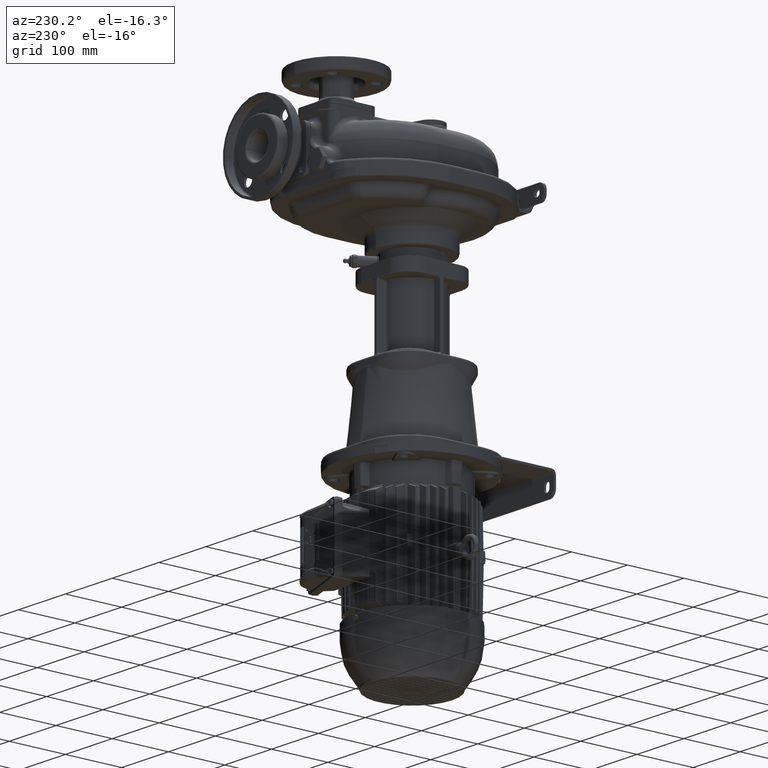
[diagram: clean part render]
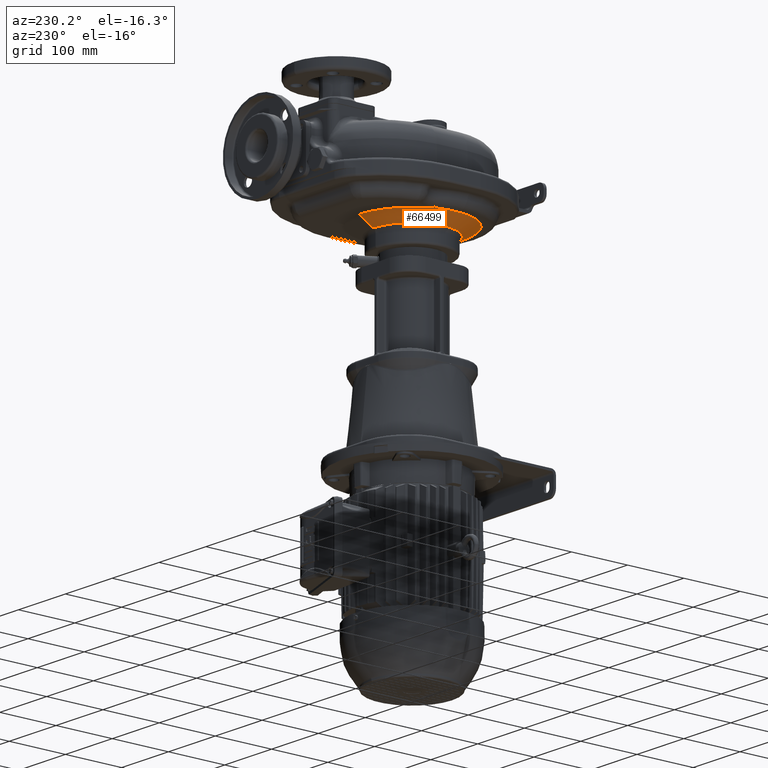
[diagram: same view with one face highlighted and labeled with its STEP entity id]
A machine part, auxiliary view. The second image highlights one B-rep face of the part: STEP entity #66499.
In plain terms, the highlighted conical surface has half-angle 60 deg.
Its self-contained STEP definition (entity closure, byte-faithful):
#9633=CARTESIAN_POINT('',(0.E0,0.E0,-3.907179676972E1));
#9634=DIRECTION('',(0.E0,0.E0,-1.E0));
#9635=DIRECTION('',(0.E0,-1.E0,0.E0));
#9636=AXIS2_PLACEMENT_3D('',#9633,#9634,#9635);
#9638=DIRECTION('',(0.E0,-8.660254037844E-1,5.E-1));
#9639=VECTOR('',#9638,2.923760430703E1);
#9640=CARTESIAN_POINT('',(0.E0,-6.9E1,-5.369059892324E1));
#9641=LINE('',#9640,#9639);
#9642=CARTESIAN_POINT('',(0.E0,0.E0,-5.369059892324E1));
#9643=DIRECTION('',(0.E0,0.E0,-1.E0));
#9644=DIRECTION('',(0.E0,-1.E0,0.E0));
#9645=AXIS2_PLACEMENT_3D('',#9642,#9643,#9644);
#9647=DIRECTION('',(0.E0,8.660254037844E-1,5.E-1));
#9648=VECTOR('',#9647,2.923760430703E1);
#9649=CARTESIAN_POINT('',(1.532108161659E-14,6.9E1,-5.369059892324E1));
#9650=LINE('',#9649,#9648);
#9651=CARTESIAN_POINT('',(0.E0,0.E0,-3.907179676972E1));
#9652=DIRECTION('',(0.E0,0.E0,-1.E0));
#9653=DIRECTION('',(-8.622478345761E-1,5.064865958433E-1,0.E0));
#9654=AXIS2_PLACEMENT_3D('',#9651,#9652,#9653);
#9656=CARTESIAN_POINT('',(-8.905473399093E1,3.409199745411E1,
-3.847321898222E1));
#9657=CARTESIAN_POINT('',(-8.897661091580E1,3.432277947868E1,
-3.846770571881E1));
#9658=CARTESIAN_POINT('',(-8.881493748900E1,3.477856095586E1,
-3.845971490832E1));
#9659=CARTESIAN_POINT('',(-8.855932206661E1,3.543769971762E1,
-3.845684839569E1));
#9660=CARTESIAN_POINT('',(-8.828318829121E1,3.609292412956E1,
-3.846281115210E1));
#9661=CARTESIAN_POINT('',(-8.797899571194E1,3.676021104069E1,
-3.847800499323E1));
#9662=CARTESIAN_POINT('',(-8.763595242511E1,3.745930876625E1,
-3.850340323206E1));
#9663=CARTESIAN_POINT('',(-8.723582010843E1,3.822046370257E1,
-3.854106227839E1));
#9664=CARTESIAN_POINT('',(-8.675234095821E1,3.908232543419E1,
-3.859438387958E1));
#9665=CARTESIAN_POINT('',(-8.617541253520E1,4.005295797430E1,
-3.866441381016E1));
#9666=CARTESIAN_POINT('',(-8.550163992659E1,4.113638828256E1,
-3.874896837352E1));
#9667=CARTESIAN_POINT('',(-8.473474426281E1,4.233458401168E1,
-3.884260325756E1));
#9668=CARTESIAN_POINT('',(-8.386481639959E1,4.368061334044E1,
-3.893680046677E1));
#9669=CARTESIAN_POINT('',(-8.311202888510E1,4.485680332709E1,
-3.900195925596E1));
#9670=CARTESIAN_POINT('',(-8.245712336523E1,4.590002147644E1,
-3.904373348719E1));
#9671=CARTESIAN_POINT('',(-8.186608190043E1,4.686443786889E1,
-3.906698453675E1));
#9672=CARTESIAN_POINT('',(-8.150163235745E1,4.747589048070E1,
-3.907179671278E1));
#9673=CARTESIAN_POINT('',(-8.132765384438E1,4.777207305346E1,
-3.907179676972E1));
#9675=CARTESIAN_POINT('',(-9.442542130497E1,-4.317303522948E0,
-3.895427179862E1));
#9676=CARTESIAN_POINT('',(-9.446646756274E1,-3.576320792858E0,
-3.895013813610E1));
#9677=CARTESIAN_POINT('',(-9.453183256778E1,-2.091722208694E0,
-3.894149635583E1));
#9678=CARTESIAN_POINT('',(-9.457945058349E1,1.418716062178E-1,
-3.892732426017E1));
#9679=CARTESIAN_POINT('',(-9.457642914278E1,2.381421716959E0,
-3.891184695698E1));
#9680=CARTESIAN_POINT('',(-9.452255793573E1,4.626171273487E0,
-3.889496116254E1));
#9681=CARTESIAN_POINT('',(-9.441762629868E1,6.875457452389E0,
-3.887655400441E1));
#9682=CARTESIAN_POINT('',(-9.426141895212E1,9.128628123021E0,
-3.885650257968E1));
#9683=CARTESIAN_POINT('',(-9.405370966778E1,1.138511523604E1,
-3.883467177068E1));
#9684=CARTESIAN_POINT('',(-9.379425524784E1,1.364441602678E1,
-3.881091258242E1));
#9685=CARTESIAN_POINT('',(-9.348278627583E1,1.590612303349E1,
-3.878505956828E1));
#9686=CARTESIAN_POINT('',(-9.311899583007E1,1.816994050645E1,
-3.875692779530E1));
#9687=CARTESIAN_POINT('',(-9.270252639152E1,2.043570591279E1,
-3.872630904694E1));
#9688=CARTESIAN_POINT('',(-9.223294507707E1,2.270344826061E1,
-3.869296640131E1));
#9689=CARTESIAN_POINT('',(-9.170973800059E1,2.497334883851E1,
-3.865662909134E1));
#9690=CARTESIAN_POINT('',(-9.113222985638E1,2.724599844522E1,
-3.861698051606E1));
#9691=CARTESIAN_POINT('',(-9.049962129952E1,2.952212756695E1,
-3.857365241162E1));
#9692=CARTESIAN_POINT('',(-8.981083416695E1,3.180313136776E1,
-3.852620230810E1));
#9693=CARTESIAN_POINT('',(-8.931318810288E1,3.332850260348E1,
-3.849145846430E1));
#9694=CARTESIAN_POINT('',(-8.905473399093E1,3.409199745411E1,
-3.847321898222E1));
#9696=CARTESIAN_POINT('',(-8.425941142379E1,-4.238761411277E1,
-3.907179676972E1));
#9697=CARTESIAN_POINT('',(-8.457274834127E1,-4.176475318284E1,
-3.907179678162E1));
#9698=CARTESIAN_POINT('',(-8.518595959895E1,-4.051226894692E1,
-3.907156761846E1));
#9699=CARTESIAN_POINT('',(-8.606498647443E1,-3.861407531140E1,
-3.907053606116E1));
#9700=CARTESIAN_POINT('',(-8.690277765944E1,-3.669737414935E1,
-3.906881775254E1));
#9701=CARTESIAN_POINT('',(-8.769891528316E1,-3.476313027571E1,
-3.906641497795E1));
#9702=CARTESIAN_POINT('',(-8.845301679531E1,-3.281228612836E1,
-3.906333152308E1));
#9703=CARTESIAN_POINT('',(-8.916471247851E1,-3.084581693081E1,
-3.905957250497E1));
#9704=CARTESIAN_POINT('',(-8.983365761737E1,-2.886470226824E1,
-3.905514454774E1));
#9705=CARTESIAN_POINT('',(-9.045953041485E1,-2.686993071963E1,
-3.905005572707E1));
#9706=CARTESIAN_POINT('',(-9.104203137508E1,-2.486250266509E1,
-3.904431565359E1));
#9707=CARTESIAN_POINT('',(-9.158088502602E1,-2.284342540372E1,
-3.903793547402E1));
#9708=CARTESIAN_POINT('',(-9.207583922972E1,-2.081371594984E1,
-3.903092791373E1));
#9709=CARTESIAN_POINT('',(-9.252666623625E1,-1.877439769385E1,
-3.902330729422E1));
#9710=CARTESIAN_POINT('',(-9.293316227117E1,-1.672650293686E1,
-3.901508955814E1));
#9711=CARTESIAN_POINT('',(-9.329514871910E1,-1.467106780396E1,
-3.900629229513E1));
#9712=CARTESIAN_POINT('',(-9.361247141410E1,-1.260913673502E1,
-3.899693472105E1));
#9713=CARTESIAN_POINT('',(-9.388500130788E1,-1.054176010028E1,
-3.898703780806E1));
#9714=CARTESIAN_POINT('',(-9.411263613947E1,-8.469982335450E0,
-3.897662400111E1));
#9715=CARTESIAN_POINT('',(-9.429529597258E1,-6.394875121212E0,
-3.896571776128E1));
#9716=CARTESIAN_POINT('',(-9.438705113345E1,-5.009974875953E0,
-3.895813597290E1));
#9717=CARTESIAN_POINT('',(-9.442542130497E1,-4.317303522948E0,
-3.895427179862E1));
#48242=CARTESIAN_POINT('',(0.E0,-6.9E1,-5.369059892324E1));
#48244=VERTEX_POINT('',#48242);
#48246=CARTESIAN_POINT('',(2.219209644230E-14,6.9E1,-5.369059892324E1));
#48248=VERTEX_POINT('',#48246);
#48249=CARTESIAN_POINT('',(1.155093470765E-14,9.432050807569E1,
-3.907179676972E1));
#48250=CARTESIAN_POINT('',(0.E0,-9.432050807569E1,-3.907179676972E1));
#48251=VERTEX_POINT('',#48249);
#48252=VERTEX_POINT('',#48250);
#48253=CARTESIAN_POINT('',(-8.425941142377E1,-4.238761411280E1,
-3.907179676972E1));
#48254=VERTEX_POINT('',#48253);
#48255=CARTESIAN_POINT('',(-8.132765384438E1,4.777207305346E1,
-3.907179676972E1));
#48256=VERTEX_POINT('',#48255);
#48335=VERTEX_POINT('',#9717);
#48336=VERTEX_POINT('',#9694);
#66483=CARTESIAN_POINT('',(0.E0,0.E0,-4.607437027912E1));
#66484=DIRECTION('',(0.E0,0.E0,1.E0));
#66485=DIRECTION('',(0.E0,-1.E0,0.E0));
#66486=AXIS2_PLACEMENT_3D('',#66483,#66484,#66485);
#66487=CONICAL_SURFACE('',#66486,8.219169497367E1,6.E1);
#66488=ORIENTED_EDGE('',*,*,#66211,.F.);
#66489=ORIENTED_EDGE('',*,*,#66194,.F.);
#66490=ORIENTED_EDGE('',*,*,#66166,.T.);
#66491=ORIENTED_EDGE('',*,*,#66191,.T.);
#66492=ORIENTED_EDGE('',*,*,#66208,.F.);
#66494=ORIENTED_EDGE('',*,*,#66493,.F.);
#66495=ORIENTED_EDGE('',*,*,#66375,.F.);
#66496=ORIENTED_EDGE('',*,*,#66477,.F.);
#66497=EDGE_LOOP('',(#66488,#66489,#66490,#66491,#66492,#66494,#66495,#66496));
#66498=FACE_OUTER_BOUND('',#66497,.F.);
#66499=ADVANCED_FACE('',(#66498),#66487,.T.);
#9637=CIRCLE('',#9636,9.432050807569E1);
#9646=CIRCLE('',#9645,6.9E1);
#9655=CIRCLE('',#9654,9.432050807569E1);
#9674=B_SPLINE_CURVE_WITH_KNOTS('',3,(#9656,#9657,#9658,#9659,#9660,#9661,#9662,
#9663,#9664,#9665,#9666,#9667,#9668,#9669,#9670,#9671,#9672,#9673),
.UNSPECIFIED.,.F.,.F.,(4,1,1,1,1,1,1,1,1,1,1,1,1,1,1,4),(0.E0,6.666666666667E-2,
1.333333333333E-1,2.E-1,2.666666666667E-1,3.333333333333E-1,4.E-1,
4.666666666667E-1,5.333333333333E-1,6.E-1,6.666666666667E-1,7.333333333333E-1,
8.E-1,8.666666666667E-1,9.333333333333E-1,1.E0),.UNSPECIFIED.);
#9695=B_SPLINE_CURVE_WITH_KNOTS('',3,(#9675,#9676,#9677,#9678,#9679,#9680,#9681,
#9682,#9683,#9684,#9685,#9686,#9687,#9688,#9689,#9690,#9691,#9692,#9693,#9694),
.UNSPECIFIED.,.F.,.F.,(4,1,1,1,1,1,1,1,1,1,1,1,1,1,1,1,1,4),(0.E0,
5.882352941176E-2,1.176470588235E-1,1.764705882353E-1,2.352941176471E-1,
2.941176470588E-1,3.529411764706E-1,4.117647058824E-1,4.705882352941E-1,
5.294117647059E-1,5.882352941176E-1,6.470588235294E-1,7.058823529412E-1,
7.647058823529E-1,8.235294117647E-1,8.823529411765E-1,9.411764705882E-1,1.E0),
.UNSPECIFIED.);
#9718=B_SPLINE_CURVE_WITH_KNOTS('',3,(#9696,#9697,#9698,#9699,#9700,#9701,#9702,
#9703,#9704,#9705,#9706,#9707,#9708,#9709,#9710,#9711,#9712,#9713,#9714,#9715,
#9716,#9717),.UNSPECIFIED.,.F.,.F.,(4,1,1,1,1,1,1,1,1,1,1,1,1,1,1,1,1,1,1,4),(
0.E0,5.263157894737E-2,1.052631578947E-1,1.578947368421E-1,2.105263157895E-1,
2.631578947368E-1,3.157894736842E-1,3.684210526316E-1,4.210526315789E-1,
4.736842105263E-1,5.263157894737E-1,5.789473684211E-1,6.315789473684E-1,
6.842105263158E-1,7.368421052632E-1,7.894736842105E-1,8.421052631579E-1,
8.947368421053E-1,9.473684210526E-1,1.E0),.UNSPECIFIED.);
#66166=EDGE_CURVE('',#48244,#48248,#9646,.T.);
#66191=EDGE_CURVE('',#48248,#48251,#9650,.T.);
#66194=EDGE_CURVE('',#48244,#48252,#9641,.T.);
#66208=EDGE_CURVE('',#48256,#48251,#9655,.T.);
#66211=EDGE_CURVE('',#48252,#48254,#9637,.T.);
#66375=EDGE_CURVE('',#48335,#48336,#9695,.T.);
#66477=EDGE_CURVE('',#48254,#48335,#9718,.T.);
#66493=EDGE_CURVE('',#48336,#48256,#9674,.T.);